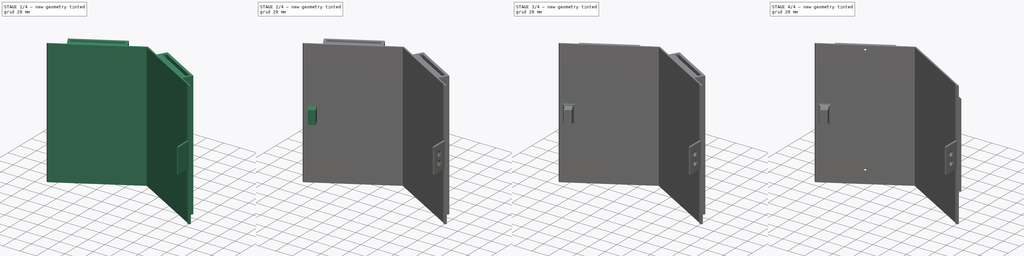
[diagram: build sequence overview — one tinted view per stage of 4, left to right]
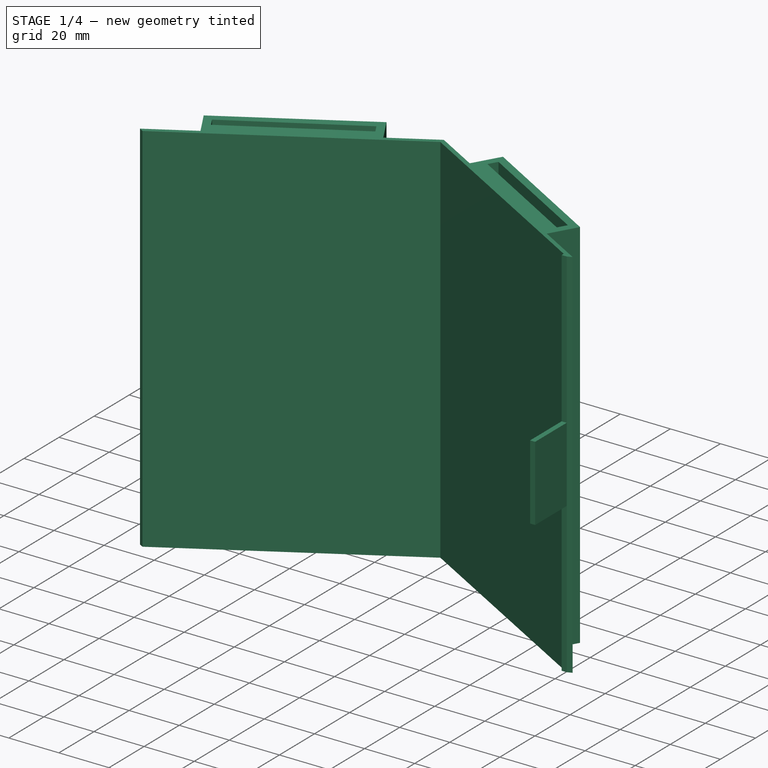
[diagram: stage 1 of 4 — iso view after this stage's code; geometry added in this stage tinted green]
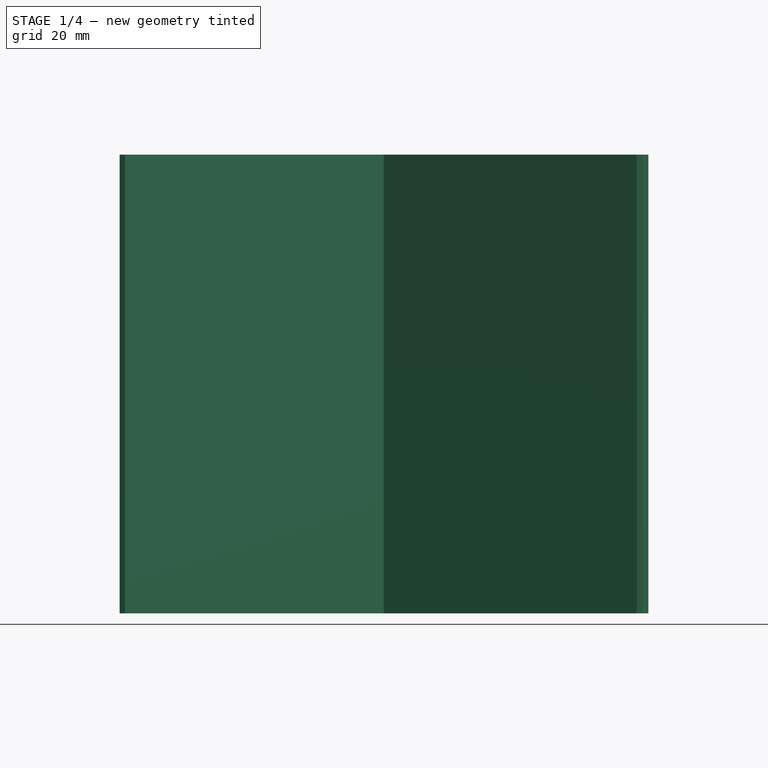
[diagram: stage 1 of 4 — front view after this stage's code; geometry added in this stage tinted green]
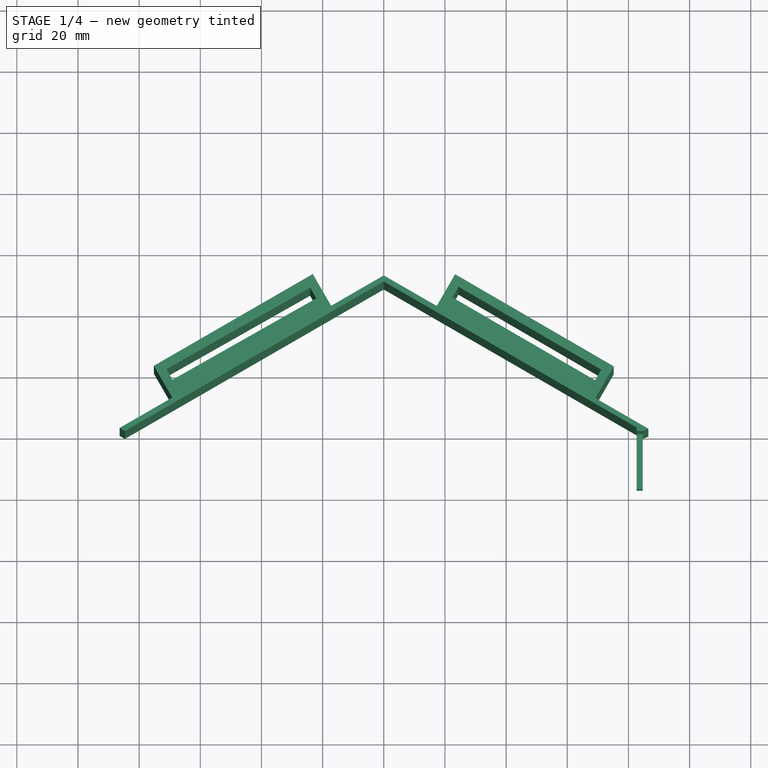
[diagram: stage 1 of 4 — top view after this stage's code; geometry added in this stage tinted green]
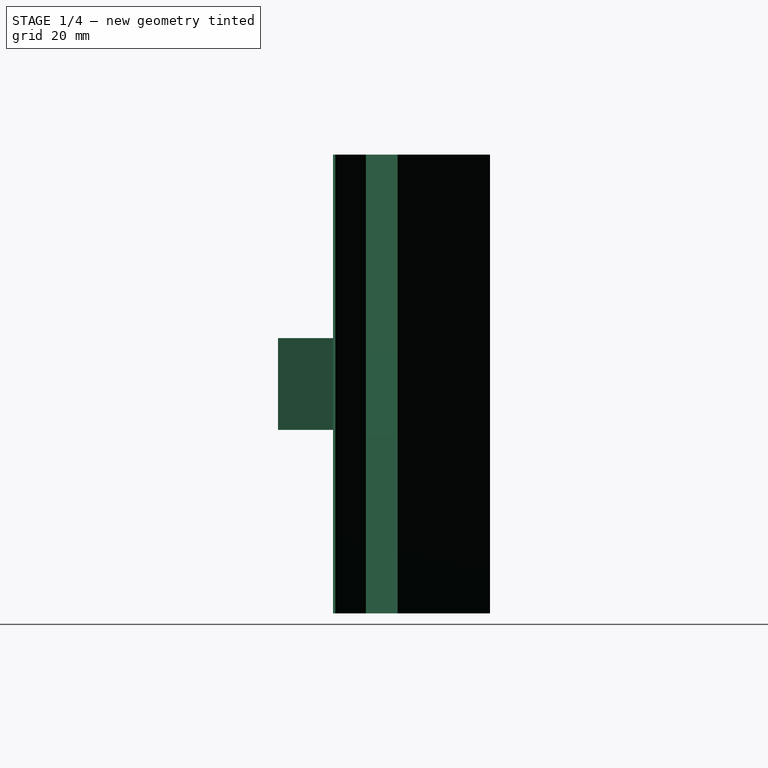
[diagram: stage 1 of 4 — right view after this stage's code; geometry added in this stage tinted green]
FCSTD DOCUMENT  (FreeCAD 0.20R29177 +426 (Git))
Label: classifier_middle_verPartial
License: All rights reserved
LicenseURL: https://en.wikipedia.org/wiki/All_rights_reserved
objects: Sketcher::SketchObject×9, PartDesign::Pocket×3, PartDesign::Hole×3, PartDesign::Pad×2, PartDesign::Fillet×1, PartDesign::CoordinateSystem×1, PartDesign::Body×1
note: 29 computed .brp shape members not serialized (recipe doc carries the construction recipe); baked Part::Feature solids carry a one-line shape summary decoded from their .brp

FEATURE [Sketcher::SketchObject] Sketch
  FullyConstrained = true
  MapMode = 5
  Support = -> [XY_Plane]
  sketch-geometry (40):
    g0: LineSegment StartX=82.6705 StartY=1.1547 StartZ=0 EndX=0 EndY=48.8845 EndZ=0
    g1: LineSegment StartX=0 StartY=48.8845 StartZ=0 EndX=-84.6487 EndY=-7.1e-15 EndZ=0
    g2: Circle CenterX=0 CenterY=-48.8467 CenterZ=0 NormalX=0 NormalY=0 NormalZ=1 AngleXU=0 Radius=97.7313
    g3: LineSegment StartX=86.5246 StartY=0.74986 StartZ=0 EndX=69.2041 EndY=10.7499 EndZ=0
    g4: LineSegment StartX=0 StartY=50.8845 StartZ=0 EndX=-17.2114 EndY=40.945 EndZ=0
    g5: Circle CenterX=0 CenterY=-48.8467 CenterZ=0 NormalX=0 NormalY=0 NormalZ=1 AngleXU=0 Radius=99.7313
    g6: GeomPoint X=43.2623 Y=25.8172 Z=0
    g7: GeomPoint X=-43.1905 Y=25.9421 Z=0
    g8: LineSegment StartX=-69.1696 StartY=10.9392 StartZ=0 EndX=-75.1707 EndY=21.3308 EndZ=0
    g9: LineSegment StartX=-75.1707 StartY=21.3308 StartZ=0 EndX=-23.2125 EndY=51.3366 EndZ=0
    g10: LineSegment StartX=-23.2125 StartY=51.3366 StartZ=0 EndX=-17.2114 EndY=40.945 EndZ=0
    g11: LineSegment StartX=-71.0725 StartY=20.2332 StartZ=0 EndX=-69.0721 EndY=16.7693 EndZ=0
    g12: LineSegment StartX=-69.0721 StartY=16.7693 StartZ=0 EndX=-22.0776 EndY=43.3724 EndZ=0
    g13: LineSegment StartX=-22.0776 StartY=43.3724 StartZ=0 EndX=-24.078 EndY=46.8363 EndZ=0
    g14: LineSegment StartX=-24.078 StartY=46.8363 StartZ=0 EndX=-71.0725 EndY=20.2332 EndZ=0
    g15: LineSegment StartX=-23.2125 StartY=51.3366 StartZ=0 EndX=-21.48 EndY=48.3366 EndZ=0
    g16: LineSegment StartX=-25.8104 StartY=49.8363 StartZ=0 EndX=-24.078 EndY=46.8363 EndZ=0
    g17: LineSegment StartX=-24.078 StartY=46.8363 StartZ=0 EndX=-21.48 EndY=48.3366 EndZ=0
    g18: LineSegment StartX=-23.2125 StartY=51.3366 StartZ=0 EndX=-25.8104 EndY=49.8363 EndZ=0
    g19: LineSegment StartX=-71.0725 StartY=20.2332 StartZ=0 EndX=-72.5728 EndY=22.8311 EndZ=0
    g20: LineSegment StartX=-71.0725 StartY=20.2332 StartZ=0 EndX=-73.6704 EndY=18.7329 EndZ=0
    g21: LineSegment StartX=75.2041 StartY=21.1422 StartZ=0 EndX=69.2041 EndY=10.7499 EndZ=0
    g22: LineSegment StartX=23.3205 StartY=51.2768 StartZ=0 EndX=75.2041 EndY=21.1422 EndZ=0
    g23: LineSegment StartX=72.6099 StartY=22.6489 StartZ=0 EndX=71.1099 EndY=20.0508 EndZ=0
    g24: LineSegment StartX=71.1099 StartY=20.0508 StartZ=0 EndX=73.7041 EndY=18.5441 EndZ=0
    g25: LineSegment StartX=69.1099 StartY=16.5867 StartZ=0 EndX=71.1099 EndY=20.0508 EndZ=0
    g26: LineSegment StartX=71.1099 StartY=20.0508 StartZ=0 EndX=24.4147 EndY=47.172 EndZ=0
    g27: LineSegment StartX=22.4147 StartY=43.7079 StartZ=0 EndX=69.1099 EndY=16.5867 EndZ=0
    g28: LineSegment StartX=24.4147 StartY=47.172 StartZ=0 EndX=22.4147 EndY=43.7079 EndZ=0
    g29: LineSegment StartX=24.4147 StartY=47.172 StartZ=0 EndX=25.9147 EndY=49.7701 EndZ=0
    g30: LineSegment StartX=24.4147 StartY=47.172 StartZ=0 EndX=21.8205 EndY=48.6787 EndZ=0
    g31: LineSegment StartX=17.3205 StartY=40.8845 StartZ=0 EndX=23.3205 EndY=51.2768 EndZ=0
    g32: LineSegment StartX=84.6705 StartY=0 StartZ=0 EndX=86.5246 EndY=0.74986 EndZ=0
    g33: LineSegment StartX=-86.3809 StartY=0.999598 StartZ=0 EndX=-84.6487 EndY=0 EndZ=0
    g34: LineSegment StartX=-69.1696 StartY=10.9392 StartZ=0 EndX=-86.3809 EndY=0.999598 EndZ=0
    g35: LineSegment StartX=17.3205 StartY=40.8845 StartZ=0 EndX=0 EndY=50.8845 EndZ=0
    g36: LineSegment StartX=84.6705 StartY=0 StartZ=0 EndX=84.6705 EndY=-18 EndZ=0
    g37: LineSegment StartX=84.6705 StartY=-18 StartZ=0 EndX=82.6705 EndY=-18 EndZ=0
    g38: LineSegment StartX=82.6705 StartY=-18 StartZ=0 EndX=82.6705 EndY=1.1547 EndZ=0
    g39: LineSegment StartX=0 StartY=48.8845 StartZ=0 EndX=84.6705 EndY=0 EndZ=0
  constraints (111):
    c: Coincident(g0,g1)
    c: PointOnObject(g0,g2)
    c: PointOnObject(g1,g2)
    c: Coincident(g35,g4)
    c: PointOnObject(g3,g5)
    c: PointOnObject(g35,g5)
    c: PointOnObject(g34,g5)
    c: Angle(g-2,g0) = 1.0472
    c: PointOnObject(g0,g-2)
    c: PointOnObject(g35,g-2)
    c: Parallel(g0,g3)
    c: Parallel(g1,g4)
    c: PointOnObject(g32,g-1)
    c: PointOnObject(g1,g-1)
    c: Symmetric(g3,g35,g6)
    c: Coincident(g2,g5)
    c: PointOnObject(g2,g-2)
    c: Distance(g32,g3) = 2
    c: Symmetric(g35,g34,g7)
    c: Coincident(g8,g9)
    c: Coincident(g9,g10)
    c: Parallel(g8,g10)
    c: Distance(g10) = 12
    c: Equal(g8,g10)
    c: Distance(g9) = 60
    c: Symmetric(g10,g8,g7)
    c: Coincident(g11,g12)
    c: Coincident(g12,g13)
    c: Coincident(g14,g11)
    c: Parallel(g13,g11)
    c: Parallel(g11,g8)
    c: Parallel(g12,g14)
    c: Coincident(g15,g9)
    c: PointOnObject(g16,g9)
    c: Coincident(g16,g13)
    c: Equal(g16,g15)
    c: Coincident(g14,g13)
    c: Parallel(g16,g15)
    c: DistanceY(g15,g15) = 3
    c: Coincident(g17,g13)
    c: Coincident(g17,g15)
    c: Coincident(g18,g9)
    c: Distance(g18) = 3
    c: Equal(g17,g18)
    c: Parallel(g18,g17)
    c: PointOnObject(g17,g10)
    c: Coincident(g19,g11)
    c: PointOnObject(g19,g9)
    c: Coincident(g20,g11)
    c: PointOnObject(g20,g8)
    c: Parallel(g19,g8)
    c: Parallel(g9,g20)
    c: Distance(g19) = 3
    c: Distance(g20) = 3
    c: Distance(g13) = 4
    c: Coincident(g31,g22)
    c: Coincident(g22,g21)
    c: Parallel(g31,g21)
    c: Distance(g21) = 12
    c: Equal(g31,g21)
    c: Distance(g22) = 60
    c: Coincident(g28,g27)
    c: Coincident(g27,g25)
    c: Coincident(g26,g28)
    c: Parallel(g25,g28)
    c: Parallel(g28,g31)
    c: Parallel(g27,g26)
    c: PointOnObject(g23,g22)
    c: Coincident(g23,g25)
    c: Coincident(g26,g25)
    c: Coincident(g24,g25)
    c: PointOnObject(g24,g21)
    c: Coincident(g29,g28)
    c: PointOnObject(g29,g22)
    c: Coincident(g30,g28)
    c: PointOnObject(g30,g31)
    c: Parallel(g29,g31)
    c: Parallel(g22,g30)
    c: Distance(g29) = 3
    c: Distance(g30) = 3
    c: Distance(g25) = 4
    c: Parallel(g24,g22)
    c: Parallel(g23,g21)
    c: Parallel(g26,g22)
    c: Equal(g24,g30)
    c: Symmetric(g21,g31,g6)
    c: Coincident(g32,g3)
    c: Coincident(g33,g34)
    c: Coincident(g33,g1)
    c: Perpendicular(g4,g10) = 1.5708
    c: Coincident(g34,g8)
    c: Perpendicular(g3,g21) = 1.5708
    c: Coincident(g35,g31)
    c: Parallel(g35,g0)
    c: Angle(g32,g-1) = 2.75727
    c: Equal(g32,g33)
    c: Parallel(g34,g1)
    c: Coincident(g36,g32)
    c: Vertical(g36)
    c: DistanceY(g36,g36) = 18
    c: Coincident(g37,g36)
    c: Horizontal(g37)
    c: Coincident(g38,g37)
    c: Vertical(g38)
    c: DistanceX(g37,g37) = 2
    c: Coincident(g0,g38)
    c: Coincident(g39,g0)
    c: Coincident(g39,g32)
    c: PointOnObject(g0,g39)
    c: Distance(g35) = 20
    c: DistanceY(g0,g4) = 2
FEATURE [PartDesign::Pad] Pad
  Direction = (0,0,1)
  Length = 150
  Length2 = 10
  Profile = -> Sketch
  ReferenceAxis = -> Sketch [N_Axis]
  Refine = true
  Type = 0
FEATURE [Sketcher::SketchObject] Sketch001
  ExternalGeometry = -> [Pad]
  FullyConstrained = false
  MapMode = 5
  Placement = pos=(84.6705,0,0) rot=(0.57735,0.57735,0.57735;2.0944rad)
  Support = -> [Pad]
  sketch-geometry (8):
    g0: LineSegment StartX=0 StartY=0 StartZ=0 EndX=-46.4356 EndY=0 EndZ=0
    g1: LineSegment StartX=-46.4356 StartY=0 StartZ=0 EndX=-46.4356 EndY=60 EndZ=0
    g2: LineSegment StartX=-46.4356 StartY=60 StartZ=0 EndX=0 EndY=60 EndZ=0
    g3: LineSegment StartX=0 StartY=60 StartZ=0 EndX=0 EndY=0 EndZ=0
    g4: LineSegment StartX=0 StartY=150 StartZ=0 EndX=-46.4356 EndY=150 EndZ=0
    g5: LineSegment StartX=-46.4356 StartY=150 StartZ=0 EndX=-46.4356 EndY=90 EndZ=0
    g6: LineSegment StartX=-46.4356 StartY=90 StartZ=0 EndX=0 EndY=90 EndZ=0
    g7: LineSegment StartX=0 StartY=90 StartZ=0 EndX=0 EndY=150 EndZ=0
  constraints (22):
    c: Coincident(g0,g1)
    c: Coincident(g1,g2)
    c: Coincident(g2,g3)
    c: Coincident(g3,g0)
    c: Horizontal(g0)
    c: Horizontal(g2)
    c: Vertical(g1)
    c: Vertical(g3)
    c: Coincident(g0,g-1)
    c: DistanceY(g-3,g-3) = 150
    c: Coincident(g4,g5)
    c: Coincident(g5,g6)
    c: Coincident(g6,g7)
    c: Coincident(g7,g4)
    c: Horizontal(g4)
    c: Horizontal(g6)
    c: Vertical(g5)
    c: Vertical(g7)
    c: Coincident(g4,g-4)
    c: Vertical(g5,g1)
    c: Equal(g5,g1)
    c: DistanceY(g1,g1) = 60
FEATURE [PartDesign::Pocket] Pocket
  BaseFeature = -> Pad
  Direction = (-1,0,0)
  Length = 5
  Length2 = 5
  Profile = -> Sketch001
  ReferenceAxis = -> Sketch001 [N_Axis]
  Refine = true
  Type = 0
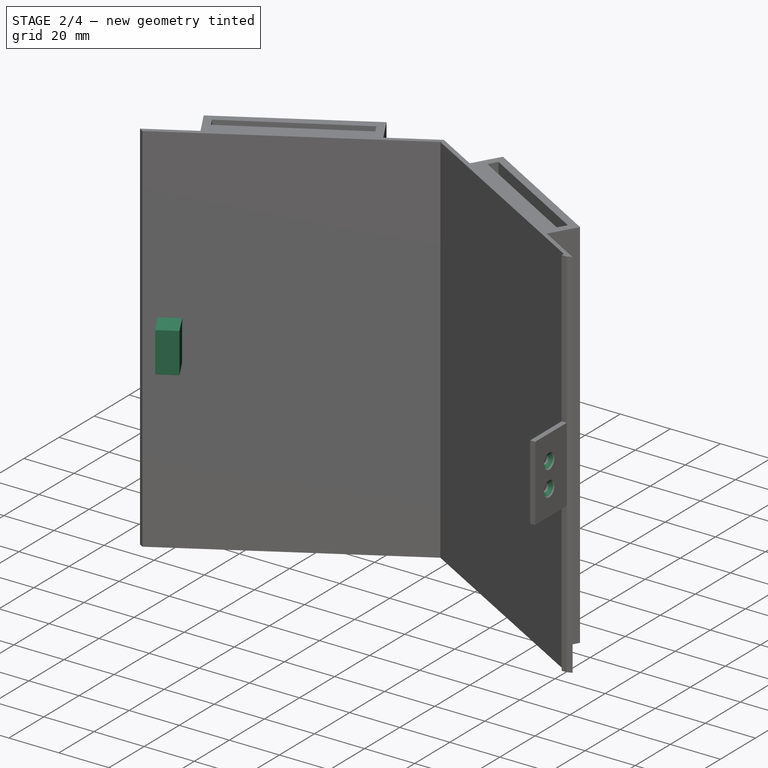
[diagram: stage 2 of 4 — iso view after this stage's code; geometry added in this stage tinted green]
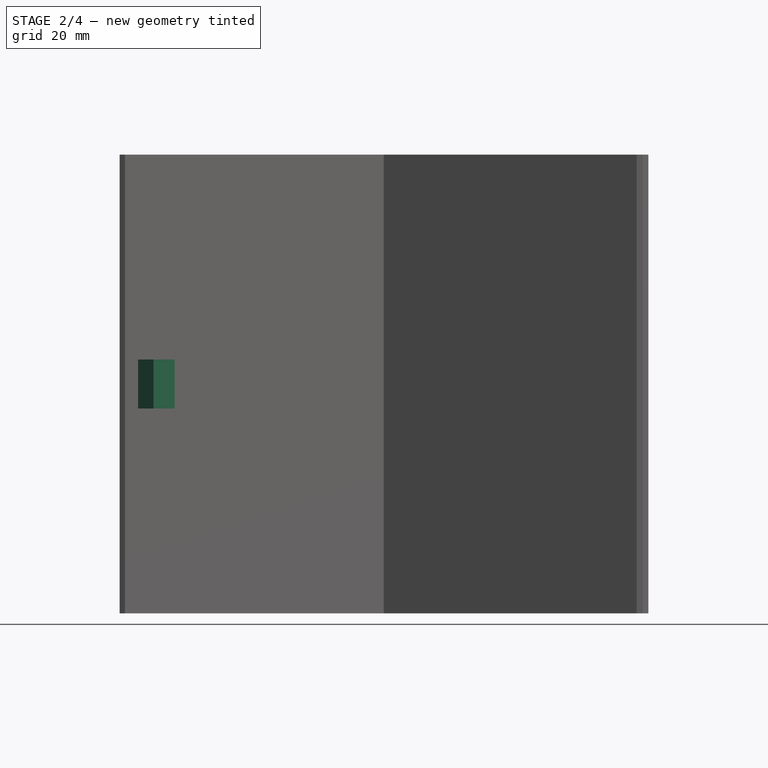
[diagram: stage 2 of 4 — front view after this stage's code; geometry added in this stage tinted green]
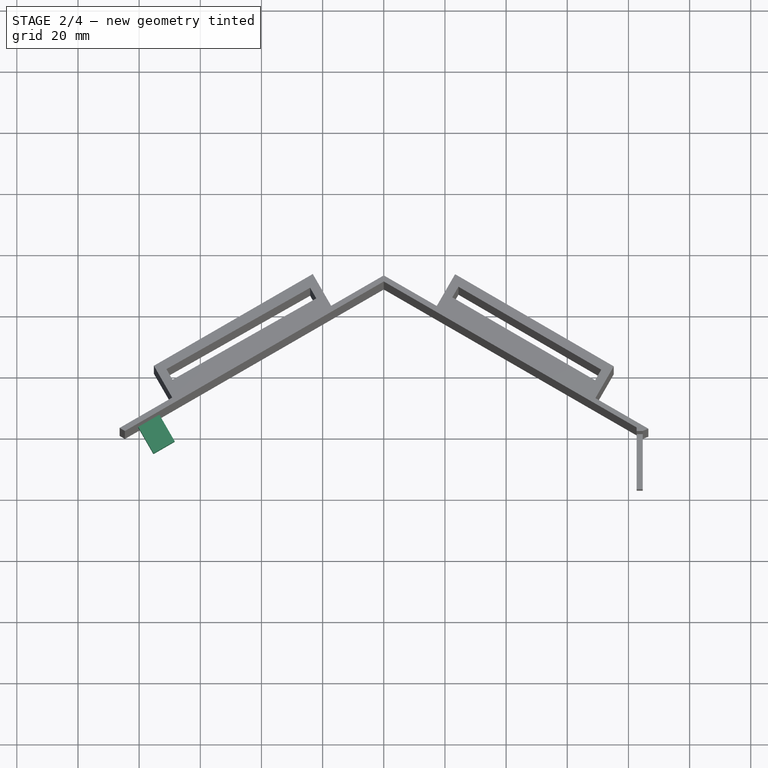
[diagram: stage 2 of 4 — top view after this stage's code; geometry added in this stage tinted green]
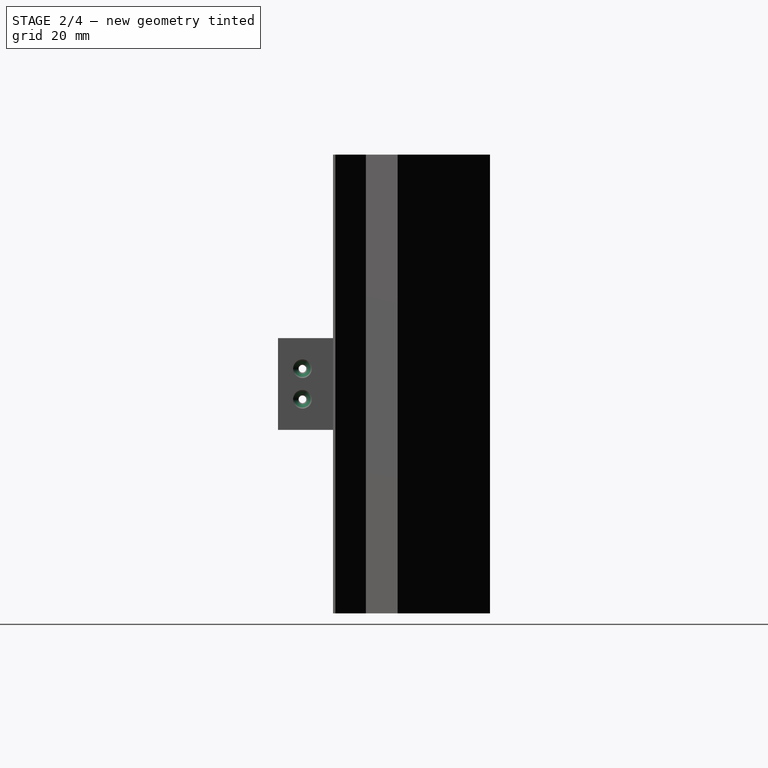
[diagram: stage 2 of 4 — right view after this stage's code; geometry added in this stage tinted green]
FEATURE [Sketcher::SketchObject] Sketch002
  ExternalGeometry = -> [Pocket]
  FullyConstrained = true
  MapMode = 5
  Placement = pos=(84.6705,0,0) rot=(0.57735,0.57735,0.57735;2.0944rad)
  Support = -> [Pocket]
  sketch-geometry (5):
    g0: Circle CenterX=-10 CenterY=80 CenterZ=0 NormalX=0 NormalY=0 NormalZ=1 AngleXU=0 Radius=3
    g1: Circle CenterX=-10 CenterY=70 CenterZ=0 NormalX=0 NormalY=0 NormalZ=1 AngleXU=0 Radius=3
    g2: GeomPoint X=0 Y=75 Z=0
    g3: GeomPoint X=-10 Y=75 Z=0
    g4: GeomPoint X=-18 Y=0 Z=0
  constraints (13):
    c: Equal(g1,g0)
    c: Diameter(g1) = 6
    c: Vertical(g1,g0)
    c: DistanceY(g1,g0) = 10
    c: Symmetric(g-6,g-5,g2)
    c: Horizontal(g3,g2)
    c: Symmetric(g0,g1,g3)
    c: DistanceX(g1,g-1) = 10
    c: DistanceY(g-1,g1) = 70
    c: PointOnObject(g4,g-1)
    c: Vertical(g4,g-5)
    c: DistanceY(g-6,g-7) = 60
    c: DistanceY(g-5,g1) = 10
FEATURE [PartDesign::Hole] Hole
  BaseFeature = -> Pocket
  CustomThreadClearance = 0
  Depth = 25
  DepthType = 0
  Diameter = 2.5
  DrillForDepth = false
  DrillPoint = 1
  DrillPointAngle = 118
  HoleCutCountersinkAngle = 90
  HoleCutCustomValues = false
  HoleCutDepth = 0
  HoleCutDiameter = 6.1
  HoleCutType = 2
  ModelThread = false
  Profile = -> Sketch002
  Tapered = false
  TaperedAngle = 90
  ThreadClass = 0
  ThreadDepth = 25
  ThreadDepthType = 0
  ThreadDirection = 0
  ThreadFit = 0
  ThreadSize = 9
  ThreadType = 1
  Threaded = true
  UseCustomThreadClearance = false
FEATURE [Sketcher::SketchObject] Sketch003
  ExternalGeometry = -> [Hole]
  FullyConstrained = true
  MapMode = 5
  Placement = pos=(-22.0365,38.1585,0) rot=(-0.186197,0.694741,0.694741;3.50977rad)
  Support = -> [Hole]
  sketch-geometry (2):
    g0: Circle CenterX=64.3034 CenterY=70 CenterZ=0 NormalX=0 NormalY=0 NormalZ=1 AngleXU=0 Radius=3
    g1: Circle CenterX=64.3034 CenterY=80 CenterZ=0 NormalX=0 NormalY=0 NormalZ=1 AngleXU=0 Radius=3
  constraints (6):
    c: Equal(g1,g0)
    c: Vertical(g1,g0)
    c: Diameter(g0) = 6
    c: DistanceY(g-3,g0) = 70
    c: DistanceY(g0,g1) = 10
    c: DistanceX(g0,g-4) = 10
FEATURE [Sketcher::SketchObject] Sketch004
  FullyConstrained = false
  MapMode = 5
  Placement = pos=(-21.1703,36.6587,0) rot=(0.935087,0.250612,0.250612;1.63786rad)
  sketch-geometry (5):
    g0: LineSegment StartX=-68.3034 StartY=83 StartZ=0 EndX=-60.3034 EndY=83 EndZ=0
    g1: LineSegment StartX=-60.3034 StartY=83 StartZ=0 EndX=-60.3034 EndY=67 EndZ=0
    g2: LineSegment StartX=-60.3034 StartY=67 StartZ=0 EndX=-68.3034 EndY=67 EndZ=0
    g3: LineSegment StartX=-68.3034 StartY=67 StartZ=0 EndX=-68.3034 EndY=83 EndZ=0
    g4: GeomPoint X=-64.3034 Y=75 Z=0
  constraints (11):
    c: Coincident(g0,g1)
    c: Coincident(g1,g2)
    c: Coincident(g2,g3)
    c: Coincident(g3,g0)
    c: Horizontal(g0)
    c: Horizontal(g2)
    c: Vertical(g1)
    c: Vertical(g3)
    c: Symmetric(g0,g2,g4)
    c: DistanceX(g0,g0) = 8
    c: DistanceY(g1,g1) = 16
FEATURE [PartDesign::Pad] Pad001
  BaseFeature = -> Hole
  Direction = (0.500097,-0.86597,2e-16)
  Length = 10
  Length2 = 10
  Profile = -> Sketch004
  ReferenceAxis = -> Sketch004 [N_Axis]
  Type = 0
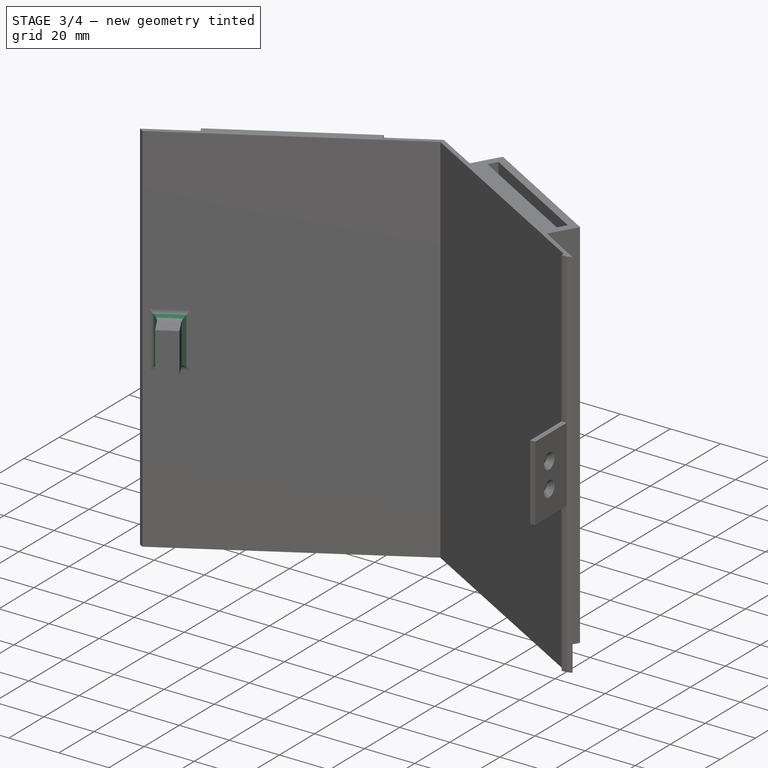
[diagram: stage 3 of 4 — iso view after this stage's code; geometry added in this stage tinted green]
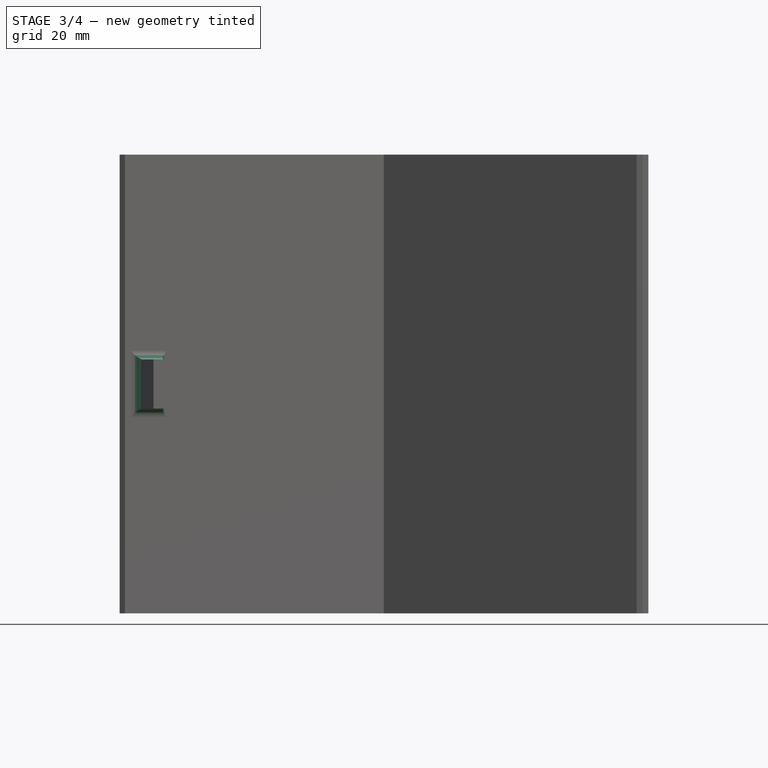
[diagram: stage 3 of 4 — front view after this stage's code; geometry added in this stage tinted green]
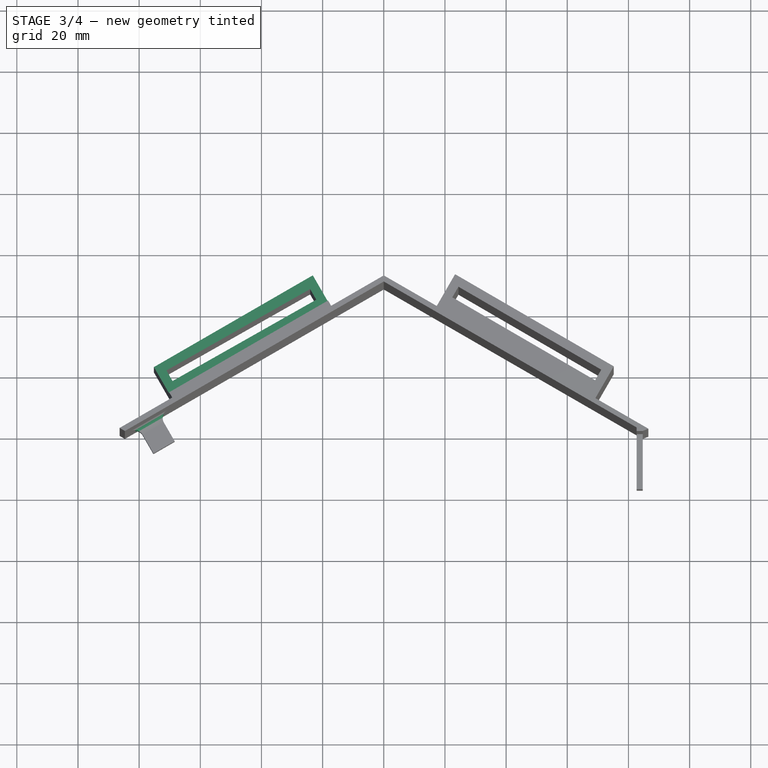
[diagram: stage 3 of 4 — top view after this stage's code; geometry added in this stage tinted green]
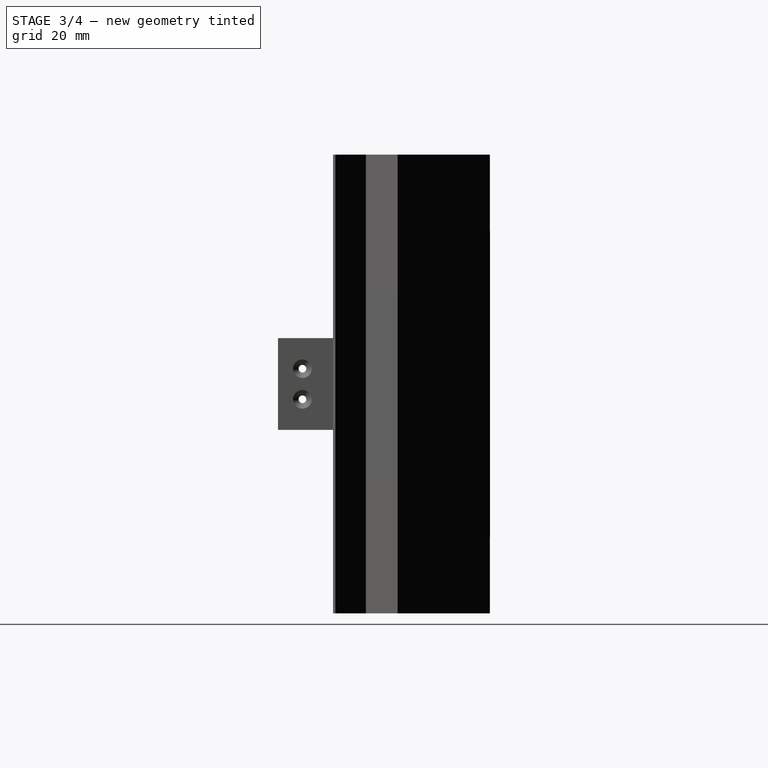
[diagram: stage 3 of 4 — right view after this stage's code; geometry added in this stage tinted green]
FEATURE [PartDesign::Hole] Hole001
  BaseFeature = -> Pad001
  CustomThreadClearance = 0
  Depth = 10
  DepthType = 0
  Diameter = 2.5
  DrillForDepth = true
  DrillPoint = 1
  DrillPointAngle = 118
  HoleCutCountersinkAngle = 90
  HoleCutCustomValues = false
  HoleCutDepth = 0
  HoleCutDiameter = 6.1
  HoleCutType = 0
  ModelThread = false
  Profile = -> Sketch003
  Tapered = false
  TaperedAngle = 90
  ThreadClass = 0
  ThreadDepth = 10
  ThreadDepthType = 0
  ThreadDirection = 0
  ThreadFit = 0
  ThreadSize = 9
  ThreadType = 1
  Threaded = true
  UseCustomThreadClearance = false
FEATURE [PartDesign::Fillet] Fillet
  Base = -> Hole001 [Edge80,Edge83,Edge82,Edge81]
  BaseFeature = -> Hole001
  Radius = 3
  SupportTransform = false
  UseAllEdges = false
FEATURE [Sketcher::SketchObject] Sketch007
  ExternalGeometry = -> [Fillet]
  FullyConstrained = false
  MapMode = 5
  Placement = pos=(-28.0376,48.5501,0) rot=(-0.186197,0.694741,0.694741;3.50977rad)
  Support = -> [Fillet]
  sketch-geometry (8):
    g0: LineSegment StartX=-9.13687 StartY=25 StartZ=0 EndX=60.8631 EndY=25 EndZ=0
    g1: LineSegment StartX=60.8631 StartY=25 StartZ=0 EndX=60.8631 EndY=0 EndZ=0
    g2: LineSegment StartX=60.8631 StartY=0 StartZ=0 EndX=-9.13687 EndY=0 EndZ=0
    g3: LineSegment StartX=-9.13687 StartY=0 StartZ=0 EndX=-9.13687 EndY=25 EndZ=0
    g4: LineSegment StartX=-9.13687 StartY=150 StartZ=0 EndX=60.8631 EndY=150 EndZ=0
    g5: LineSegment StartX=60.8631 StartY=150 StartZ=0 EndX=60.8631 EndY=125 EndZ=0
    g6: LineSegment StartX=60.8631 StartY=125 StartZ=0 EndX=-9.13687 EndY=125 EndZ=0
    g7: LineSegment StartX=-9.13687 StartY=125 StartZ=0 EndX=-9.13687 EndY=150 EndZ=0
  constraints (22):
    c: Coincident(g0,g1)
    c: Coincident(g1,g2)
    c: Coincident(g2,g3)
    c: Coincident(g3,g0)
    c: Horizontal(g0)
    c: Horizontal(g2)
    c: Vertical(g1)
    c: Vertical(g3)
    c: PointOnObject(g1,g-1)
    c: DistanceY(g1,g1) = 25
    c: Coincident(g4,g5)
    c: Coincident(g5,g6)
    c: Coincident(g6,g7)
    c: Coincident(g7,g4)
    c: Horizontal(g6)
    c: Vertical(g5)
    c: Vertical(g7)
    c: DistanceY(g5,g5) = 25
    c: Tangent(g4,g-3)
    c: Vertical(g5,g0)
    c: Vertical(g6,g0)
    c: DistanceX(g2,g2) = 70
FEATURE [PartDesign::Pocket] Pocket001
  BaseFeature = -> Fillet
  Direction = (0.500097,-0.86597,0)
  Length = 10
  Length2 = 5
  Profile = -> Sketch007
  ReferenceAxis = -> Sketch007 [N_Axis]
  Type = 0
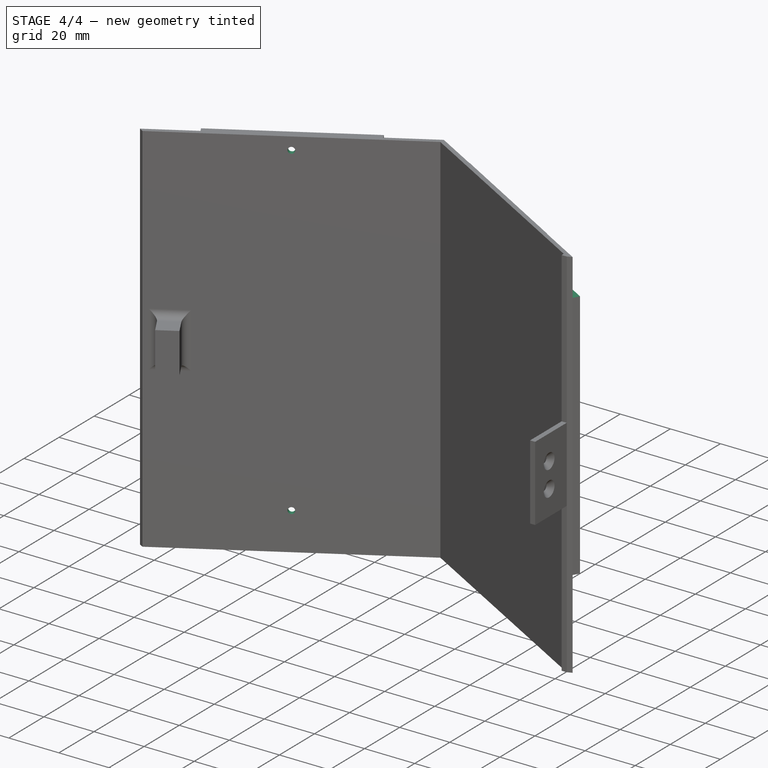
[diagram: stage 4 of 4 — iso view after this stage's code; geometry added in this stage tinted green]
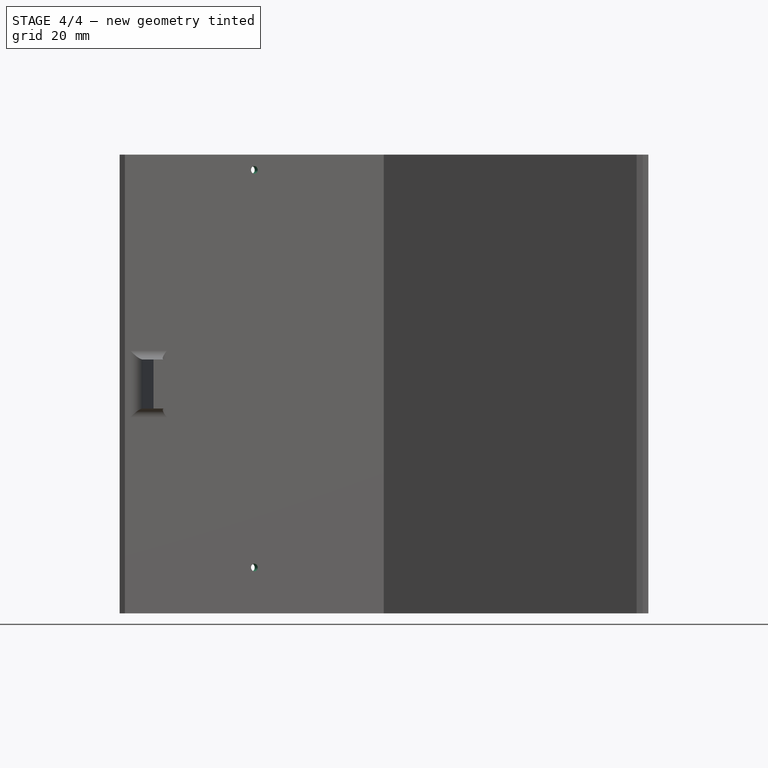
[diagram: stage 4 of 4 — front view after this stage's code; geometry added in this stage tinted green]
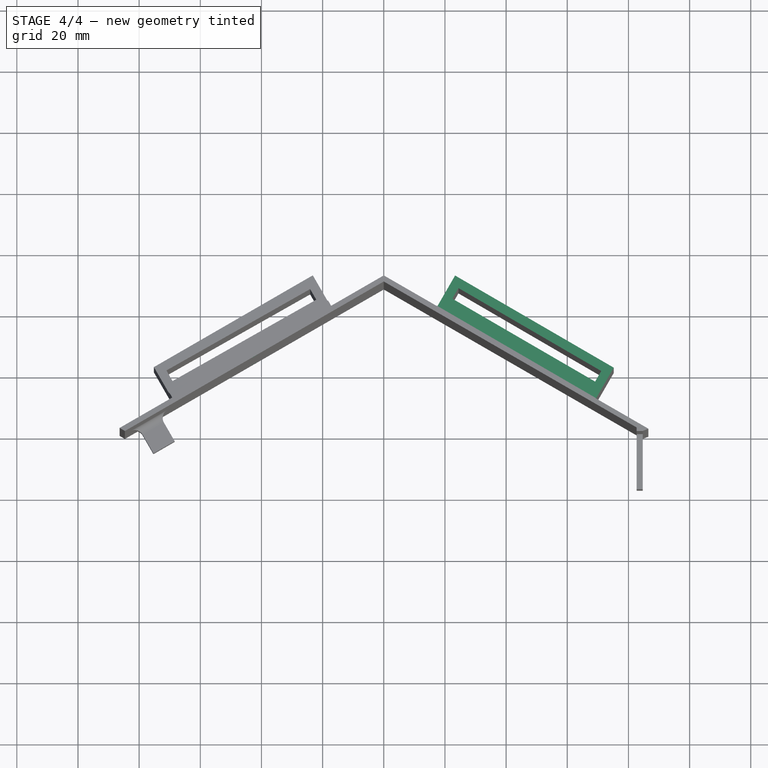
[diagram: stage 4 of 4 — top view after this stage's code; geometry added in this stage tinted green]
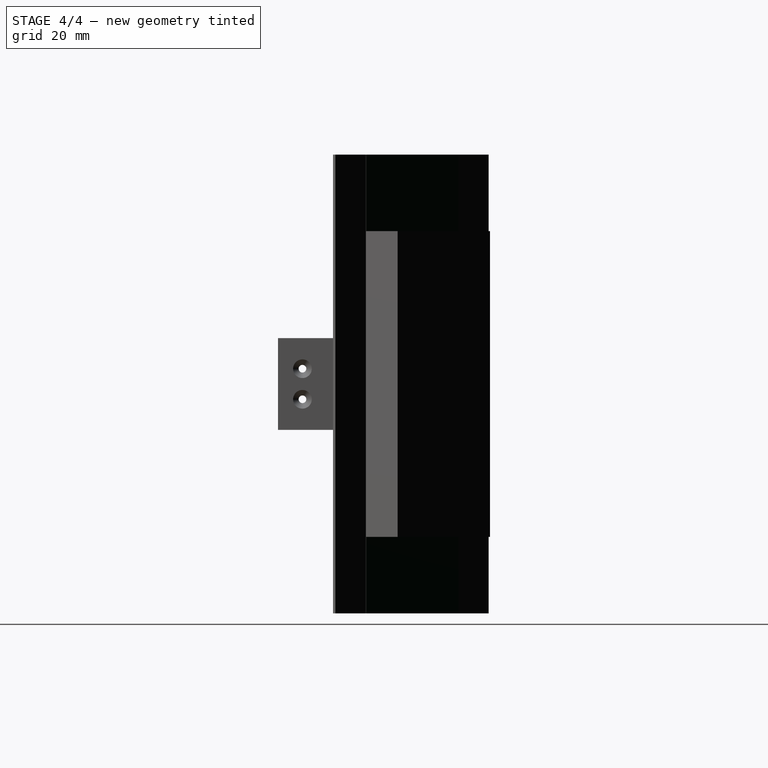
[diagram: stage 4 of 4 — right view after this stage's code; geometry added in this stage tinted green]
FEATURE [Sketcher::SketchObject] Sketch008
  ExternalGeometry = -> [Fillet]
  FullyConstrained = false
  MapMode = 5
  Placement = pos=(28.1523,48.4705,0) rot=(0.187089,0.694621,0.694621;2.77169rad)
  Support = -> [Pocket001]
  sketch-geometry (8):
    g0: LineSegment StartX=-9.13687 StartY=25 StartZ=0 EndX=60.8631 EndY=25 EndZ=0
    g1: LineSegment StartX=60.8631 StartY=25 StartZ=0 EndX=60.8631 EndY=0 EndZ=0
    g2: LineSegment StartX=60.8631 StartY=0 StartZ=0 EndX=-9.13687 EndY=0 EndZ=0
    g3: LineSegment StartX=-9.13687 StartY=0 StartZ=0 EndX=-9.13687 EndY=25 EndZ=0
    g4: LineSegment StartX=-9.13687 StartY=150 StartZ=0 EndX=60.8631 EndY=150 EndZ=0
    g5: LineSegment StartX=60.8631 StartY=150 StartZ=0 EndX=60.8631 EndY=125 EndZ=0
    g6: LineSegment StartX=60.8631 StartY=125 StartZ=0 EndX=-9.13687 EndY=125 EndZ=0
    g7: LineSegment StartX=-9.13687 StartY=125 StartZ=0 EndX=-9.13687 EndY=150 EndZ=0
  constraints (22):
    c: Coincident(g0,g1)
    c: Coincident(g1,g2)
    c: Coincident(g2,g3)
    c: Coincident(g3,g0)
    c: Horizontal(g0)
    c: Horizontal(g2)
    c: Vertical(g1)
    c: Vertical(g3)
    c: PointOnObject(g1,g-1)
    c: DistanceY(g1,g1) = 25
    c: Coincident(g4,g5)
    c: Coincident(g5,g6)
    c: Coincident(g6,g7)
    c: Coincident(g7,g4)
    c: Horizontal(g6)
    c: Vertical(g5)
    c: Vertical(g7)
    c: DistanceY(g5,g5) = 25
    c: Tangent(g4,g-3)
    c: Vertical(g5,g0)
    c: Vertical(g6,g0)
    c: DistanceX(g2,g2) = 70
FEATURE [Sketcher::SketchObject] Sketch009
  ExternalGeometry = -> [Pocket001]
  FullyConstrained = false
  MapMode = 5
  Placement = pos=(28.1523,48.4705,0) rot=(0.187089,0.694621,0.694621;2.77169rad)
  Support = -> [Pocket001]
  sketch-geometry (8):
    g0: LineSegment StartX=-59.0752 StartY=150 StartZ=0 EndX=10.9248 EndY=150 EndZ=0
    g1: LineSegment StartX=10.9248 StartY=150 StartZ=0 EndX=10.9248 EndY=125 EndZ=0
    g2: LineSegment StartX=10.9248 StartY=125 StartZ=0 EndX=-59.0752 EndY=125 EndZ=0
    g3: LineSegment StartX=-59.0752 StartY=125 StartZ=0 EndX=-59.0752 EndY=150 EndZ=0
    g4: LineSegment StartX=-59.0752 StartY=25 StartZ=0 EndX=10.9248 EndY=25 EndZ=0
    g5: LineSegment StartX=10.9248 StartY=25 StartZ=0 EndX=10.9248 EndY=0 EndZ=0
    g6: LineSegment StartX=10.9248 StartY=0 StartZ=0 EndX=-59.0752 EndY=0 EndZ=0
    g7: LineSegment StartX=-59.0752 StartY=0 StartZ=0 EndX=-59.0752 EndY=25 EndZ=0
  constraints (21):
    c: Coincident(g0,g1)
    c: Coincident(g1,g2)
    c: Coincident(g2,g3)
    c: Coincident(g3,g0)
    c: Horizontal(g2)
    c: Vertical(g1)
    c: Vertical(g3)
    c: DistanceY(g3,g3) = 25
    c: Tangent(g-3,g0)
    c: Coincident(g4,g5)
    c: Coincident(g5,g6)
    c: Coincident(g6,g7)
    c: Coincident(g7,g4)
    c: Vertical(g5)
    c: Vertical(g7)
    c: DistanceY(g7,g7) = 25
    c: Horizontal(g4)
    c: Tangent(g6,g-1)
    c: Vertical(g4,g1)
    c: Vertical(g2,g4)
    c: DistanceX(g4,g4) = 70
FEATURE [PartDesign::Pocket] Pocket002
  BaseFeature = -> Pocket001
  Direction = (-0.502244,-0.864726,0)
  Length = 11.9
  Length2 = 5
  Profile = -> Sketch009
  ReferenceAxis = -> Sketch009 [N_Axis]
  Type = 0
FEATURE [Sketcher::SketchObject] Sketch010
  ExternalGeometry = -> [Pocket002]
  FullyConstrained = true
  MapMode = 5
  Placement = pos=(-23.0367,39.8904,1.6e-15) rot=(-0.186197,0.694741,0.694741;3.50977rad)
  Support = -> [Pocket002]
  sketch-geometry (3):
    g0: Circle CenterX=24.4281 CenterY=145 CenterZ=0 NormalX=0 NormalY=0 NormalZ=1 AngleXU=0 Radius=3
    g1: GeomPoint X=24.4281 Y=150 Z=0
    g2: Circle CenterX=24.4281 CenterY=15 CenterZ=0 NormalX=0 NormalY=0 NormalZ=1 AngleXU=0 Radius=3
  constraints (7):
    c: Diameter(g0) = 6
    c: Symmetric(g-3,g-3,g1)
    c: Vertical(g1,g0)
    c: DistanceY(g0,g1) = 5
    c: Diameter(g2) = 6
    c: Vertical(g2,g0)
    c: DistanceY(g-1,g2) = 15
FEATURE [PartDesign::Hole] Hole002
  BaseFeature = -> Pocket002
  CustomThreadClearance = 0
  Depth = 25
  DepthType = 0
  Diameter = 2.5
  DrillForDepth = false
  DrillPoint = 1
  DrillPointAngle = 118
  HoleCutCountersinkAngle = 90
  HoleCutCustomValues = false
  HoleCutDepth = 0
  HoleCutDiameter = 6.1
  HoleCutType = 2
  ModelThread = false
  Profile = -> Sketch010
  Tapered = false
  TaperedAngle = 90
  ThreadClass = 0
  ThreadDepth = 25
  ThreadDepthType = 0
  ThreadDirection = 0
  ThreadFit = 0
  ThreadSize = 9
  ThreadType = 1
  Threaded = true
  UseCustomThreadClearance = false
FEATURE [PartDesign::CoordinateSystem] LCS_1
  AttacherType = Attacher::AttachEngine3D
  AttachmentOffset = pos=(0,0,75) rot=(0,0,1;2.0944rad)
  MapMode = 45
  Placement = pos=(0,48.8845,150) rot=(0,0,1;2.0944rad)
  Support = -> [Hole002]
FEATURE [PartDesign::Body] Body  label="MiddlePartialBody"
  Group = -> [Sketch,Pad,Sketch001,Pocket,Sketch002,Hole,Sketch003,Sketch004,Pad001,Hole001,Fillet,Sketch007,Pocket001,Sketch008,Sketch009,Pocket002,Sketch010,Hole002,LCS_1]
  Origin = -> Origin
  Tip = -> Hole002
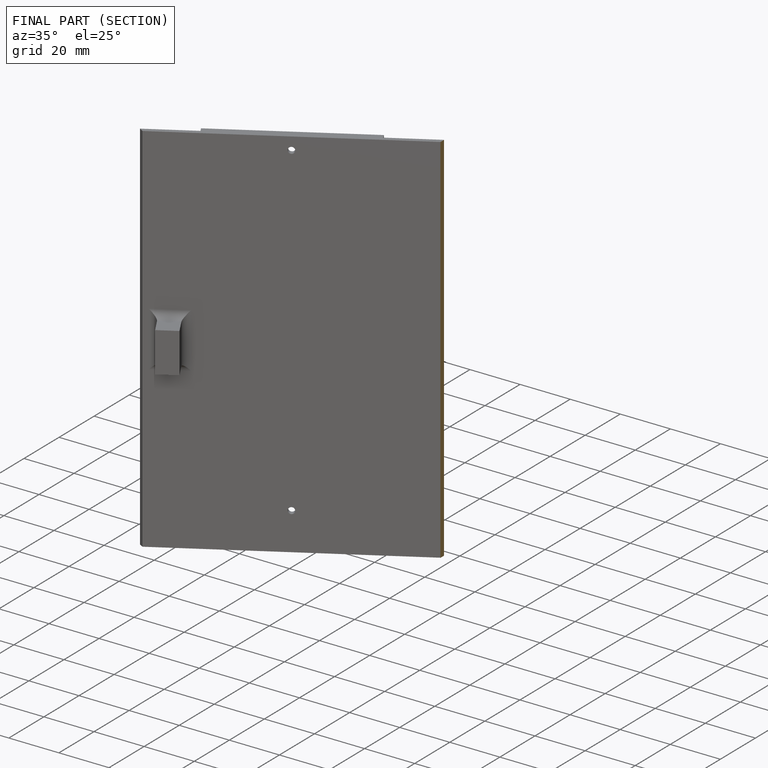
[diagram: finished part — half-section view (interior)]
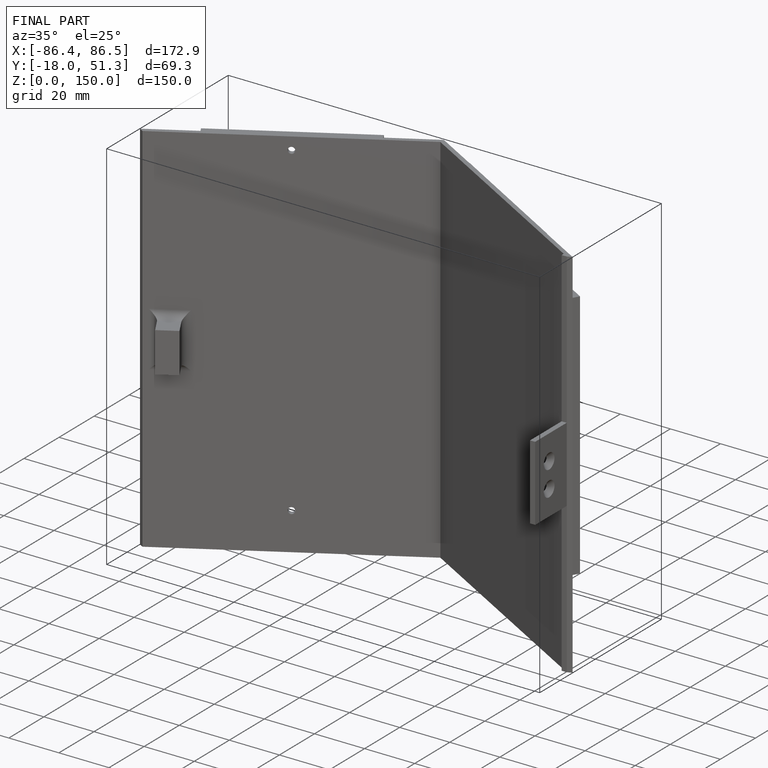
[diagram: finished part — iso view with bounding-box wireframe]
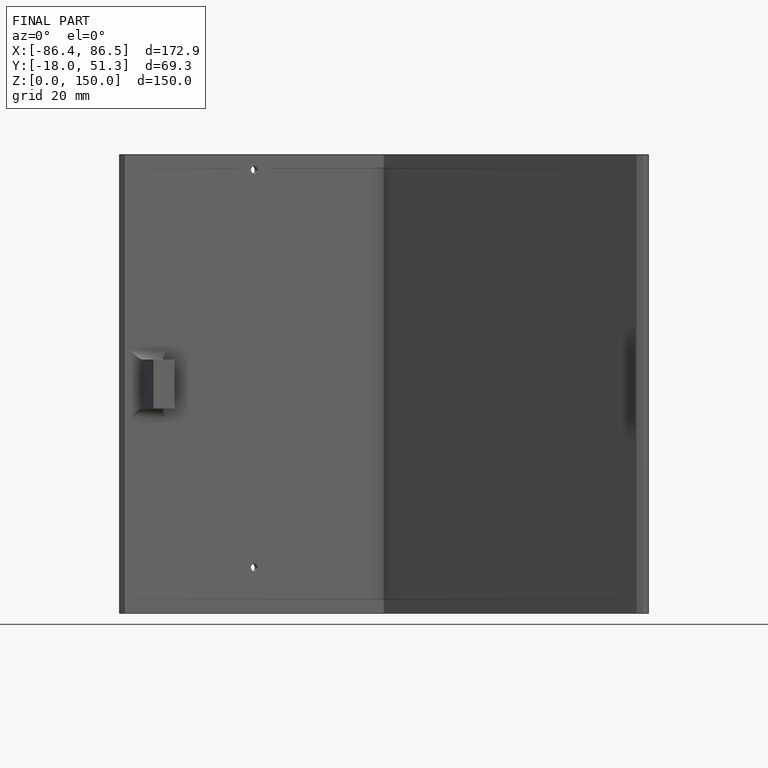
[diagram: finished part — front view with bounding-box wireframe]
